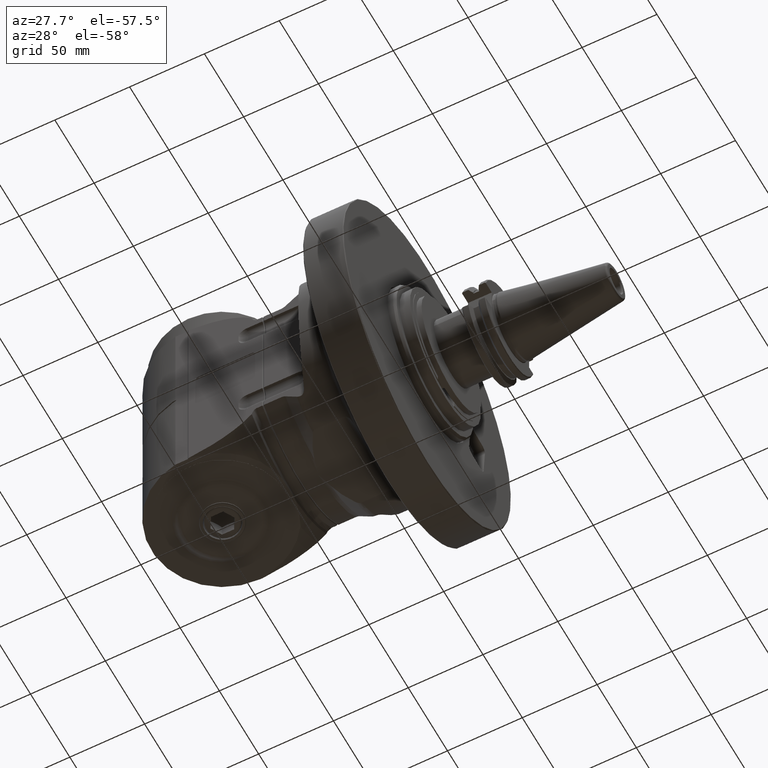
[diagram: clean part render]
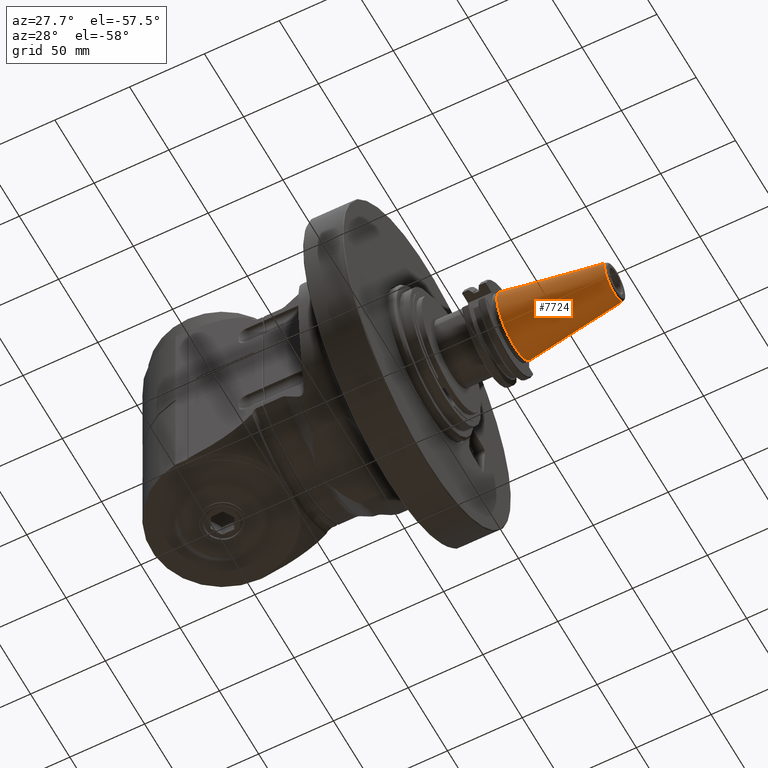
[diagram: same view with one face highlighted and labeled with its STEP entity id]
A machine part, auxiliary view. The second image highlights one B-rep face of the part: STEP entity #7724.
In plain terms, the highlighted conical surface has half-angle 8.297 deg.
Its self-contained STEP definition (entity closure, byte-faithful):
#713=CIRCLE('',#8612,22.225);
#714=CIRCLE('',#8614,12.45906381812);
#715=CIRCLE('',#8615,12.45906381812);
#885=CONICAL_SURFACE('',#8613,17.34203190906,0.144812411498922);
#1304=FACE_OUTER_BOUND('',#1819,.T.);
#1819=EDGE_LOOP('',(#6842,#6843,#6844,#6845,#6846));
#2442=LINE('',#14133,#2941);
#2941=VECTOR('',#10715,17.34203190906);
#3630=VERTEX_POINT('',#14128);
#3631=VERTEX_POINT('',#14132);
#3632=VERTEX_POINT('',#14134);
#4715=EDGE_CURVE('',#3630,#3630,#713,.T.);
#4717=EDGE_CURVE('',#3630,#3631,#2442,.T.);
#4718=EDGE_CURVE('',#3632,#3631,#714,.T.);
#4719=EDGE_CURVE('',#3631,#3632,#715,.T.);
#6842=ORIENTED_EDGE('',*,*,#4715,.F.);
#6843=ORIENTED_EDGE('',*,*,#4717,.T.);
#6844=ORIENTED_EDGE('',*,*,#4718,.F.);
#6845=ORIENTED_EDGE('',*,*,#4719,.F.);
#6846=ORIENTED_EDGE('',*,*,#4717,.F.);
#7724=ADVANCED_FACE('',(#1304),#885,.T.);
#8612=AXIS2_PLACEMENT_3D('',#14129,#10710,#10711);
#8613=AXIS2_PLACEMENT_3D('',#14131,#10713,#10714);
#8614=AXIS2_PLACEMENT_3D('',#14135,#10716,#10717);
#8615=AXIS2_PLACEMENT_3D('',#14136,#10718,#10719);
#10710=DIRECTION('center_axis',(-1.,0.,0.));
#10711=DIRECTION('ref_axis',(0.,1.,0.));
#10713=DIRECTION('center_axis',(-1.,0.,0.));
#10714=DIRECTION('ref_axis',(0.,-1.,0.));
#10715=DIRECTION('',(0.98953299358046,-0.144306807239621,1.76724869581176E-17));
#10716=DIRECTION('center_axis',(1.,0.,0.));
#10717=DIRECTION('ref_axis',(0.,1.,0.));
#10718=DIRECTION('center_axis',(1.,0.,0.));
#10719=DIRECTION('ref_axis',(0.,1.,0.));
#14128=CARTESIAN_POINT('',(42.0000000000009,22.2249999999967,2.72177751110459E-15));
#14129=CARTESIAN_POINT('Origin',(42.,0.,0.));
#14131=CARTESIAN_POINT('Origin',(75.48323010543,0.,0.));
#14132=CARTESIAN_POINT('',(108.9664602109,12.45906381812,0.));
#14133=CARTESIAN_POINT('',(75.48323010543,17.34203190906,-2.12378638681416E-15));
#14134=CARTESIAN_POINT('',(108.9664602109,-12.45906381812,1.52579526252333E-15));
#14135=CARTESIAN_POINT('Origin',(108.9664602109,0.,0.));
#14136=CARTESIAN_POINT('Origin',(108.9664602109,0.,0.));